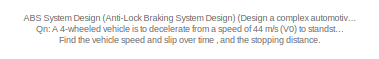
[diagram: root canvas - part 1/5, top left region]
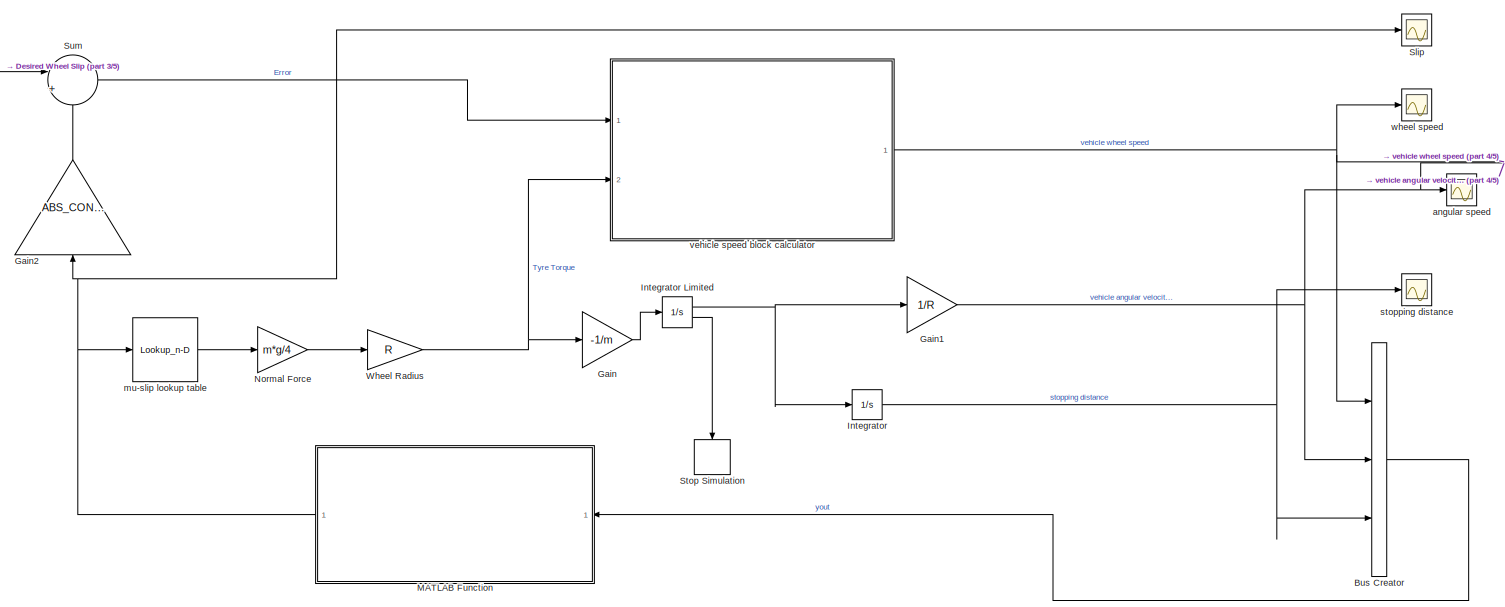
[diagram: root canvas - part 2/5, full width, top band]
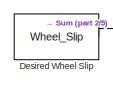
[diagram: root canvas - part 3/5, top left region]
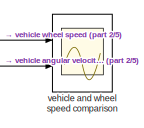
[diagram: root canvas - part 4/5, top right region]
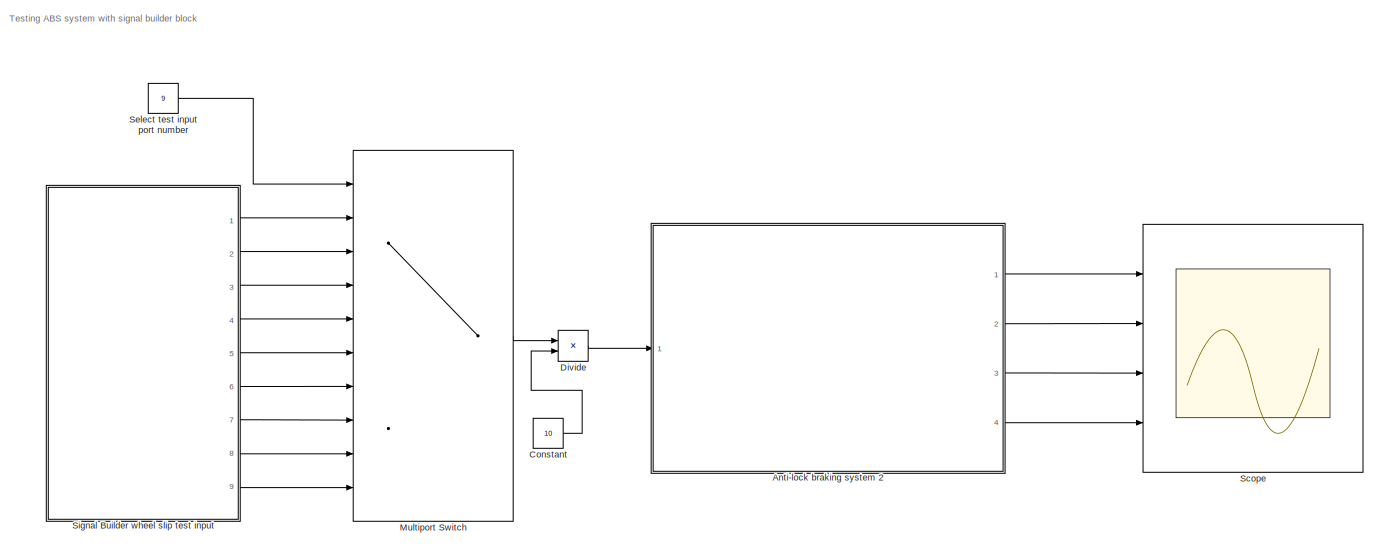
[diagram: root canvas - part 5/5, bottom center region]
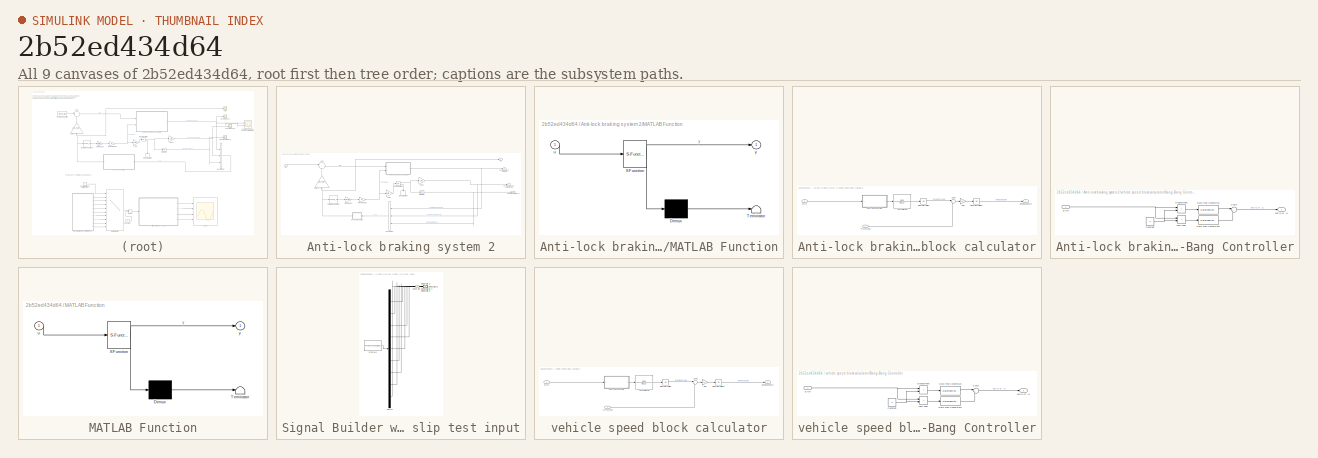
[diagram: thumbnail index - all 9 canvases of the model, root first then tree order]
MODEL slx_2b52ed434d64
KIND model
CONFIG AbsTol = auto
CONFIG EnableMultiTasking = off
CONFIG FixedStep = auto
CONFIG InitFcn = Wheel_Slip=0.2;\nm=75;\nR=1.25;\ng=9.81;\nI=5;\nv0=44;\nABS_CONTROL=1;
CONFIG MaxStep = auto
CONFIG MinStep = auto
CONFIG RelTol = 1e-3
CONFIG SampleTimeConstraint = Unconstrained
CONFIG SolverName = VariableStepAuto
CONFIG StartTime = 0.0
CONFIG StopTime = 25
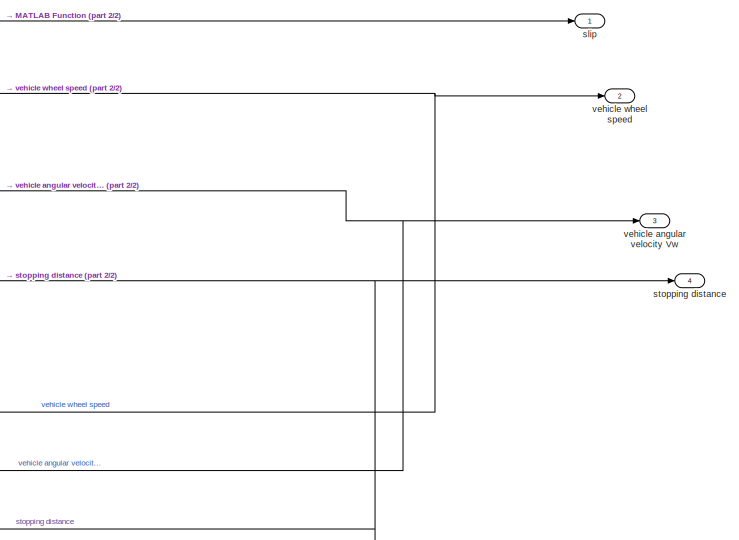
[diagram: Anti-lock braking system 2 - part 1/2, right side, full height]
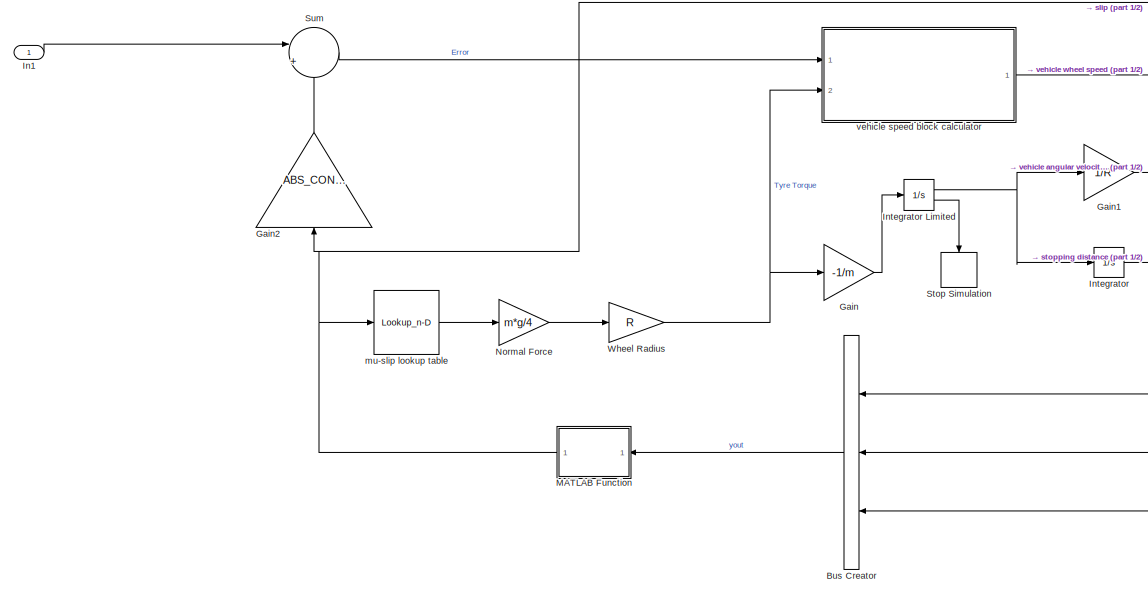
[diagram: Anti-lock braking system 2 - part 2/2, left side, full height]
BLOCK [SubSystem] Anti-lock braking system 2
  Ports = [1, 4]
  RequestExecContextInheritance = off
BLOCK [BusCreator] Anti-lock braking system 2/Bus Creator
  DisplayOption = bar
  InheritFromInputs = on
  Inputs = 3
  Ports = [3, 1]
BLOCK [Gain] Anti-lock braking system 2/Gain
  Gain = -1/m
BLOCK [Gain] Anti-lock braking system 2/Gain1
  Gain = 1/R
BLOCK [Gain] Anti-lock braking system 2/Gain2
  Gain = ABS_CONTROL
  NameLocation = right
BLOCK [Inport] Anti-lock braking system 2/In1
BLOCK [Integrator] Anti-lock braking system 2/Integrator
  Ports = [1, 1]
BLOCK [Integrator] Anti-lock braking system 2/Integrator Limited
  InitialCondition = v0
  LimitOutput = on
  LowerSaturationLimit = 0
  Ports = [1, 2]
  ShowSaturationPort = on
  UpperSaturationLimit = 1000
BLOCK [SubSystem] Anti-lock braking system 2/MATLAB Function
  ErrorFcn = Stateflow.Translate.translate
  NameLocation = top
  PermitHierarchicalResolution = ExplicitOnly
  Ports = [1, 1]
  RequestExecContextInheritance = off
  SFBlockType = MATLAB Function
  TreatAsAtomicUnit = on
BLOCK [Demux] Anti-lock braking system 2/MATLAB Function/ Demux 
  Outputs = 1
  Ports = [1, 1]
BLOCK [S-Function] Anti-lock braking system 2/MATLAB Function/ SFunction 
  EnableBusSupport = on
  FunctionName = sf_sfun
  PortCounts = [1 2]
  Ports = [1, 2]
  SFcnIsStateOwnerBlock = off
  SFunctionDeploymentMode = off
  Tag = Stateflow S-Function 1
BLOCK [Terminator] Anti-lock braking system 2/MATLAB Function/ Terminator 
BLOCK [Inport] Anti-lock braking system 2/MATLAB Function/u
BLOCK [Outport] Anti-lock braking system 2/MATLAB Function/y
BLOCK [Gain] Anti-lock braking system 2/Normal Force
  Gain = m*g/4
BLOCK [Stop] Anti-lock braking system 2/Stop Simulation
  NameLocation = left
BLOCK [Sum] Anti-lock braking system 2/Sum
  Inputs = |+-
  Ports = [2, 1]
BLOCK [Gain] Anti-lock braking system 2/Wheel Radius
  Gain = R
BLOCK [Lookup_n-D] Anti-lock braking system 2/mu-slip lookup table
  BreakpointsForDimension1 = [0\n0.05\n0.1\n0.15\n0.2\n0.25\n0.3\n0.35\n0.4\n0.45\n0.5\n0.55\n0.6\n0.65\n0.7\n0.75\n0.8\n0.85\n0.9\n0.95\n1\n]
  InputPortMap = u0
  InternalRulePriority = Speed
  NumberOfTableDimensions = 1
  Ports = [1, 1]
  RndMeth = Simplest
  Table = [0\n0.4\n0.8\n0.97\n1\n0.98\n0.96\n0.94\n0.92\n0.9\n0.88\n0.855\n0.83\n0.81\n0.79\n0.77\n0.75\n0.73\n0.72\n0.71\n0.7\n]
BLOCK [Outport] Anti-lock braking system 2/slip
BLOCK [Outport] Anti-lock braking system 2/stopping distance
  Port = 4
BLOCK [Outport] Anti-lock braking system 2/vehicle angular velocity Vw
  Port = 3
BLOCK [SubSystem] Anti-lock braking system 2/vehicle speed block calculator
  Ports = [2, 1]
  RequestExecContextInheritance = off
BLOCK [SubSystem] Anti-lock braking system 2/vehicle speed block calculator/Bang-Bang Controller
  Ports = [1, 1]
  RequestExecContextInheritance = off
BLOCK [Constant] Anti-lock braking system 2/vehicle speed block calculator/Bang-Bang Controller/Constant
  Value = 0
BLOCK [DataTypeConversion] Anti-lock braking system 2/vehicle speed block calculator/Bang-Bang Controller/Data Type Conversion
  OutDataTypeStr = double
  SaturateOnIntegerOverflow = off
BLOCK [DataTypeConversion] Anti-lock braking system 2/vehicle speed block calculator/Bang-Bang Controller/Data Type Conversion1
  OutDataTypeStr = double
  SaturateOnIntegerOverflow = off
BLOCK [Inport] Anti-lock braking system 2/vehicle speed block calculator/Bang-Bang Controller/Error
BLOCK [RelationalOperator] Anti-lock braking system 2/vehicle speed block calculator/Bang-Bang Controller/GreaterThan
  InputSameDT = off
  Operator = >
  OutDataTypeStr = boolean
  Ports = [2, 1]
  RndMeth = Simplest
BLOCK [RelationalOperator] Anti-lock braking system 2/vehicle speed block calculator/Bang-Bang Controller/Less Than
  InputSameDT = off
  Operator = <
  OutDataTypeStr = boolean
  Ports = [2, 1]
  RndMeth = Simplest
BLOCK [Sum] Anti-lock braking system 2/vehicle speed block calculator/Bang-Bang Controller/Sum1
  Inputs = |+-
  Ports = [2, 1]
BLOCK [Outport] Anti-lock braking system 2/vehicle speed block calculator/Bang-Bang Controller/out(+1 or -1)
BLOCK [Inport] Anti-lock braking system 2/vehicle speed block calculator/Error
BLOCK [Gain] Anti-lock braking system 2/vehicle speed block calculator/Gain
  Gain = 1/I
BLOCK [TransferFcn] Anti-lock braking system 2/vehicle speed block calculator/Hydraulic Lag
  Denominator = [0.01 1]
  Numerator = [100]
BLOCK [Integrator] Anti-lock braking system 2/vehicle speed block calculator/Integrator Limited
  LimitOutput = on
  LowerSaturationLimit = 0
  Ports = [1, 1]
  UpperSaturationLimit = 1000
BLOCK [Integrator] Anti-lock braking system 2/vehicle speed block calculator/Integrator Limited1
  InitialCondition = v0/R
  LimitOutput = on
  LowerSaturationLimit = 0
  Ports = [1, 1]
  UpperSaturationLimit = 1000
BLOCK [Sum] Anti-lock braking system 2/vehicle speed block calculator/Sum1
  Inputs = |-+
  Ports = [2, 1]
BLOCK [Inport] Anti-lock braking system 2/vehicle speed block calculator/Tyre Torque
  Port = 2
BLOCK [Outport] Anti-lock braking system 2/vehicle speed block calculator/wheel speed Wv
BLOCK [Outport] Anti-lock braking system 2/vehicle wheel speed
  Port = 2
BLOCK [BusCreator] Bus Creator
  DisplayOption = bar
  InheritFromInputs = on
  Inputs = 3
  Ports = [3, 1]
BLOCK [Constant] Constant
  Value = 10
BLOCK [Constant] Desired Wheel Slip
  Value = Wheel_Slip
BLOCK [Product] Divide
  Inputs = */
  Ports = [2, 1]
BLOCK [Gain] Gain
  Gain = -1/m
BLOCK [Gain] Gain1
  Gain = 1/R
BLOCK [Gain] Gain2
  Gain = ABS_CONTROL
  NameLocation = right
BLOCK [Integrator] Integrator
  Ports = [1, 1]
BLOCK [Integrator] Integrator Limited
  InitialCondition = v0
  LimitOutput = on
  LowerSaturationLimit = 0
  Ports = [1, 2]
  ShowSaturationPort = on
  UpperSaturationLimit = 1000
BLOCK [SubSystem] MATLAB Function
  ErrorFcn = Stateflow.Translate.translate
  NameLocation = top
  PermitHierarchicalResolution = ExplicitOnly
  Ports = [1, 1]
  RequestExecContextInheritance = off
  SFBlockType = MATLAB Function
  TreatAsAtomicUnit = on
BLOCK [Demux] MATLAB Function/ Demux 
  Outputs = 1
  Ports = [1, 1]
BLOCK [S-Function] MATLAB Function/ SFunction 
  EnableBusSupport = on
  FunctionName = sf_sfun
  PortCounts = [1 2]
  Ports = [1, 2]
  SFcnIsStateOwnerBlock = off
  SFunctionDeploymentMode = off
  Tag = Stateflow S-Function 2
BLOCK [Terminator] MATLAB Function/ Terminator 
BLOCK [Inport] MATLAB Function/u
BLOCK [Outport] MATLAB Function/y
BLOCK [MultiPortSwitch] Multiport Switch
  DataPortIndices = {2,3,4,5,6,7,8,9,10}
  DiagnosticForDefault = None
  InputSameDT = off
  Inputs = 9
  OutDataTypeStr = int8
  Ports = [10, 1]
  SaturateOnIntegerOverflow = off
BLOCK [Gain] Normal Force
  Gain = m*g/4
BLOCK [Scope] Scope
  Floating = off
  NumInputPorts = 4
  Ports = [4]
  ScopeSpecificationString = Simulink.scopes.TimeScopeBlockCfg('CurrentConfiguration', extmgr.ConfigurationSet(extmgr.Configuration('Core','General UI',true,'FigureColor',[1 1 1]),extmgr.Configuration('Core','Source UI',true),extmgr.Configuration('Sources','WiredSimulink',true,'DataLoggingVariableName','ScopeData1'),extmgr.Configuration('Visuals','Time Domain',true,'SerializedDisplays',{struct('MinYLimReal','-0.125','MaxYLimR...<+4078ch>
BLOCK [Constant] Select test input port number
  Value = 9
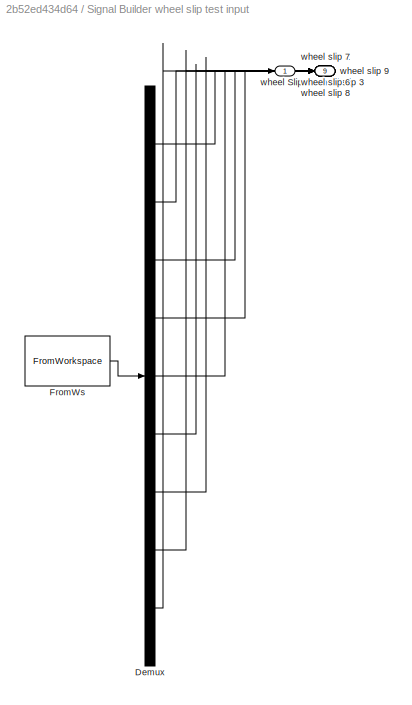
BLOCK [SubSystem] Signal Builder wheel slip test input
  ClipboardFcn = sigbuilder_block('clipboard');
  CloseFcn = sigbuilder_block('close');
  ContinueFcn = sigbuilder_block('continue');
  CopyFcn = sigbuilder_block('copy');
  DeleteFcn = sigbuilder_block('delete');
  LoadFcn = sigbuilder_block('load');
  MaskHideContents = on
  ModelCloseFcn = sigbuilder_block('modelClose');
  NameChangeFcn = sigbuilder_block('namechange');
  OpenFcn = sigbuilder_block('open',[5.4 58.2 1141.2 483.6 ]);
  PauseFcn = sigbuilder_block('pause');
  Ports = [0, 9]
  PreSaveFcn = sigbuilder_block('preSave');
  RequestExecContextInheritance = off
  StartFcn = sigbuilder_block('start');
  StopFcn = sigbuilder_block('stop');
  Tag = STV Subsys
BLOCK [Demux] Signal Builder wheel slip test input/Demux
  DisplayOption = none
  Outputs = 9
  Ports = [1, 9]
  Tag = STV Demux
BLOCK [FromWorkspace] Signal Builder wheel slip test input/FromWs
  Tag = STV FromWs
  VariableName = tuvar
BLOCK [Outport] Signal Builder wheel slip test input/wheel Slip 1
  Tag = STV Outport
BLOCK [Outport] Signal Builder wheel slip test input/wheel slip 2
  Port = 2
  Tag = STV Outport
BLOCK [Outport] Signal Builder wheel slip test input/wheel slip 3
  Port = 3
  Tag = STV Outport
BLOCK [Outport] Signal Builder wheel slip test input/wheel slip 4
  Port = 4
  Tag = STV Outport
BLOCK [Outport] Signal Builder wheel slip test input/wheel slip 5
  Port = 5
  Tag = STV Outport
BLOCK [Outport] Signal Builder wheel slip test input/wheel slip 6
  Port = 6
  Tag = STV Outport
BLOCK [Outport] Signal Builder wheel slip test input/wheel slip 7
  Port = 7
  Tag = STV Outport
BLOCK [Outport] Signal Builder wheel slip test input/wheel slip 8
  Port = 8
  Tag = STV Outport
BLOCK [Outport] Signal Builder wheel slip test input/wheel slip 9
  Port = 9
  Tag = STV Outport
BLOCK [Scope] Slip
  Floating = off
  NumInputPorts = 1
  Ports = [1]
  ScopeSpecificationString = Simulink.scopes.TimeScopeBlockCfg('CurrentConfiguration', extmgr.ConfigurationSet(extmgr.Configuration('Core','General UI',true,'FigureColor',[1 1 1]),extmgr.Configuration('Core','Source UI',true),extmgr.Configuration('Sources','WiredSimulink',true,'DataLoggingVariableName','ScopeData1'),extmgr.Configuration('Visuals','Time Domain',true,'SerializedDisplays',{struct('MinYLimReal','-0.125','MaxYLimR...<+1529ch>
BLOCK [Stop] Stop Simulation
  NameLocation = left
BLOCK [Sum] Sum
  Inputs = |+-
  Ports = [2, 1]
BLOCK [Gain] Wheel Radius
  Gain = R
BLOCK [Scope] angular speed
  Floating = off
  NumInputPorts = 1
  Ports = [1]
  ScopeSpecificationString = Simulink.scopes.TimeScopeBlockCfg('CurrentConfiguration', extmgr.ConfigurationSet(extmgr.Configuration('Core','General UI',true,'FigureColor',[1 1 1]),extmgr.Configuration('Core','Source UI',true),extmgr.Configuration('Sources','WiredSimulink',true,'DataLoggingVariableName','ScopeData2'),extmgr.Configuration('Visuals','Time Domain',true,'SerializedDisplays',{struct('MinYLimReal','-4.4','MaxYLimRea...<+1612ch>
BLOCK [Lookup_n-D] mu-slip lookup table
  BreakpointsForDimension1 = [0\n0.05\n0.1\n0.15\n0.2\n0.25\n0.3\n0.35\n0.4\n0.45\n0.5\n0.55\n0.6\n0.65\n0.7\n0.75\n0.8\n0.85\n0.9\n0.95\n1\n]
  InputPortMap = u0
  InternalRulePriority = Speed
  NumberOfTableDimensions = 1
  Ports = [1, 1]
  RndMeth = Simplest
  Table = [0\n0.4\n0.8\n0.97\n1\n0.98\n0.96\n0.94\n0.92\n0.9\n0.88\n0.855\n0.83\n0.81\n0.79\n0.77\n0.75\n0.73\n0.72\n0.71\n0.7\n]
BLOCK [Scope] stopping distance
  Floating = off
  NumInputPorts = 1
  Ports = [1]
  ScopeSpecificationString = Simulink.scopes.TimeScopeBlockCfg('CurrentConfiguration', extmgr.ConfigurationSet(extmgr.Configuration('Core','General UI',true,'FigureColor',[1 1 1]),extmgr.Configuration('Core','Source UI',true),extmgr.Configuration('Sources','WiredSimulink',true,'DataLoggingVariableName','ScopeData3','DataLoggingSaveFormat','Array','DataLoggingLimitDataPoints',true,'DataLoggingDecimation','1'),extmgr.Configurat...<+1851ch>
BLOCK [Scope] vehicle and wheel speed comparison
  Floating = off
  NumInputPorts = 2
  Ports = [2]
  ScopeSpecificationString = Simulink.scopes.TimeScopeBlockCfg('CurrentConfiguration', extmgr.ConfigurationSet(extmgr.Configuration('Core','General UI',true,'FigureColor',[1 1 1]),extmgr.Configuration('Core','Source UI',true),extmgr.Configuration('Sources','WiredSimulink',true,'DataLoggingVariableName','ScopeData1'),extmgr.Configuration('Visuals','Time Domain',true,'SerializedDisplays',{struct('MinYLimReal','-4.4','MaxYLimRea...<+1630ch>
BLOCK [SubSystem] vehicle speed block calculator
  Ports = [2, 1]
  RequestExecContextInheritance = off
BLOCK [SubSystem] vehicle speed block calculator/Bang-Bang Controller
  Ports = [1, 1]
  RequestExecContextInheritance = off
BLOCK [Constant] vehicle speed block calculator/Bang-Bang Controller/Constant
  Value = 0
BLOCK [DataTypeConversion] vehicle speed block calculator/Bang-Bang Controller/Data Type Conversion
  OutDataTypeStr = double
  SaturateOnIntegerOverflow = off
BLOCK [DataTypeConversion] vehicle speed block calculator/Bang-Bang Controller/Data Type Conversion1
  OutDataTypeStr = double
  SaturateOnIntegerOverflow = off
BLOCK [Inport] vehicle speed block calculator/Bang-Bang Controller/Error
BLOCK [RelationalOperator] vehicle speed block calculator/Bang-Bang Controller/GreaterThan
  InputSameDT = off
  Operator = >
  OutDataTypeStr = boolean
  Ports = [2, 1]
  RndMeth = Simplest
BLOCK [RelationalOperator] vehicle speed block calculator/Bang-Bang Controller/Less Than
  InputSameDT = off
  Operator = <
  OutDataTypeStr = boolean
  Ports = [2, 1]
  RndMeth = Simplest
BLOCK [Sum] vehicle speed block calculator/Bang-Bang Controller/Sum1
  Inputs = |+-
  Ports = [2, 1]
BLOCK [Outport] vehicle speed block calculator/Bang-Bang Controller/out(+1 or -1)
BLOCK [Inport] vehicle speed block calculator/Error
BLOCK [Gain] vehicle speed block calculator/Gain
  Gain = 1/I
BLOCK [TransferFcn] vehicle speed block calculator/Hydraulic Lag
  Denominator = [0.01 1]
  Numerator = [100]
BLOCK [Integrator] vehicle speed block calculator/Integrator Limited
  LimitOutput = on
  LowerSaturationLimit = 0
  Ports = [1, 1]
  UpperSaturationLimit = 1000
BLOCK [Integrator] vehicle speed block calculator/Integrator Limited1
  InitialCondition = v0/R
  LimitOutput = on
  LowerSaturationLimit = 0
  Ports = [1, 1]
  UpperSaturationLimit = 1000
BLOCK [Sum] vehicle speed block calculator/Sum1
  Inputs = |-+
  Ports = [2, 1]
BLOCK [Inport] vehicle speed block calculator/Tyre Torque
  Port = 2
BLOCK [Outport] vehicle speed block calculator/wheel speed Wv
BLOCK [Scope] wheel speed
  Floating = off
  NumInputPorts = 1
  Ports = [1]
  ScopeSpecificationString = Simulink.scopes.TimeScopeBlockCfg('CurrentConfiguration', extmgr.ConfigurationSet(extmgr.Configuration('Core','General UI',true,'FigureColor',[1 1 1]),extmgr.Configuration('Core','Source UI',true),extmgr.Configuration('Sources','WiredSimulink',true),extmgr.Configuration('Visuals','Time Domain',true,'SerializedDisplays',{struct('MinYLimReal','-4.4','MaxYLimReal','39.6','YLabelReal','vehicle speed',...<+1494ch>
ANNOTATION (root): ABS System Design (Anti-Lock Braking System Design) (Design a complex automotive system) Qn: A 4-wheeled vehicle is to decelerate from a speed of 44 m/s (V0) to standstill without wheel locking. The co-efficient friction between the tyres and road is known. The desired wheel slip is 0.2. Find the vehicle speed and slip over time , and the stopping distance.
ANNOTATION (root): Testing ABS system with signal builder block
LINE Anti-lock braking system 2/Bus Creator:1 -> Anti-lock braking system 2/MATLAB Function:1
NET Anti-lock braking system 2/Gain1:1 -> Anti-lock braking system 2/Bus Creator:2, Anti-lock braking system 2/vehicle angular velocity Vw:1
LINE Anti-lock braking system 2/Gain2:1 -> Anti-lock braking system 2/Sum:2
LINE Anti-lock braking system 2/Gain:1 -> Anti-lock braking system 2/Integrator Limited:1
LINE Anti-lock braking system 2/In1:1 -> Anti-lock braking system 2/Sum:1
NET Anti-lock braking system 2/Integrator Limited:1 -> Anti-lock braking system 2/Gain1:1, Anti-lock braking system 2/Integrator:1
LINE Anti-lock braking system 2/Integrator Limited:2 -> Anti-lock braking system 2/Stop Simulation:1
NET Anti-lock braking system 2/Integrator:1 -> Anti-lock braking system 2/Bus Creator:3, Anti-lock braking system 2/stopping distance:1
NET Anti-lock braking system 2/MATLAB Function:1 -> Anti-lock braking system 2/Gain2:1, Anti-lock braking system 2/mu-slip lookup table:1, Anti-lock braking system 2/slip:1
LINE Anti-lock braking system 2/Normal Force:1 -> Anti-lock braking system 2/Wheel Radius:1
LINE Anti-lock braking system 2/Sum:1 -> Anti-lock braking system 2/vehicle speed block calculator:1
NET Anti-lock braking system 2/Wheel Radius:1 -> Anti-lock braking system 2/Gain:1, Anti-lock braking system 2/vehicle speed block calculator:2
LINE Anti-lock braking system 2/mu-slip lookup table:1 -> Anti-lock braking system 2/Normal Force:1
NET Anti-lock braking system 2/vehicle speed block calculator/Bang-Bang Controller/Constant:1 -> Anti-lock braking system 2/vehicle speed block calculator/Bang-Bang Controller/GreaterThan:2, Anti-lock braking system 2/vehicle speed block calculator/Bang-Bang Controller/Less Than:2
LINE Anti-lock braking system 2/vehicle speed block calculator/Bang-Bang Controller/Data Type Conversion1:1 -> Anti-lock braking system 2/vehicle speed block calculator/Bang-Bang Controller/Sum1:2
LINE Anti-lock braking system 2/vehicle speed block calculator/Bang-Bang Controller/Data Type Conversion:1 -> Anti-lock braking system 2/vehicle speed block calculator/Bang-Bang Controller/Sum1:1
NET Anti-lock braking system 2/vehicle speed block calculator/Bang-Bang Controller/Error:1 -> Anti-lock braking system 2/vehicle speed block calculator/Bang-Bang Controller/GreaterThan:1, Anti-lock braking system 2/vehicle speed block calculator/Bang-Bang Controller/Less Than:1
LINE Anti-lock braking system 2/vehicle speed block calculator/Bang-Bang Controller/GreaterThan:1 -> Anti-lock braking system 2/vehicle speed block calculator/Bang-Bang Controller/Data Type Conversion:1
LINE Anti-lock braking system 2/vehicle speed block calculator/Bang-Bang Controller/Less Than:1 -> Anti-lock braking system 2/vehicle speed block calculator/Bang-Bang Controller/Data Type Conversion1:1
LINE Anti-lock braking system 2/vehicle speed block calculator/Bang-Bang Controller/Sum1:1 -> Anti-lock braking system 2/vehicle speed block calculator/Bang-Bang Controller/out(+1 or -1):1
LINE Anti-lock braking system 2/vehicle speed block calculator/Bang-Bang Controller:1 -> Anti-lock braking system 2/vehicle speed block calculator/Hydraulic Lag:1
LINE Anti-lock braking system 2/vehicle speed block calculator/Error:1 -> Anti-lock braking system 2/vehicle speed block calculator/Bang-Bang Controller:1
LINE Anti-lock braking system 2/vehicle speed block calculator/Gain:1 -> Anti-lock braking system 2/vehicle speed block calculator/Integrator Limited1:1
LINE Anti-lock braking system 2/vehicle speed block calculator/Hydraulic Lag:1 -> Anti-lock braking system 2/vehicle speed block calculator/Integrator Limited:1
LINE Anti-lock braking system 2/vehicle speed block calculator/Integrator Limited1:1 -> Anti-lock braking system 2/vehicle speed block calculator/wheel speed Wv:1
LINE Anti-lock braking system 2/vehicle speed block calculator/Integrator Limited:1 -> Anti-lock braking system 2/vehicle speed block calculator/Sum1:1
LINE Anti-lock braking system 2/vehicle speed block calculator/Sum1:1 -> Anti-lock braking system 2/vehicle speed block calculator/Gain:1
LINE Anti-lock braking system 2/vehicle speed block calculator/Tyre Torque:1 -> Anti-lock braking system 2/vehicle speed block calculator/Sum1:2
NET Anti-lock braking system 2/vehicle speed block calculator:1 -> Anti-lock braking system 2/Bus Creator:1, Anti-lock braking system 2/vehicle wheel speed:1
LINE Anti-lock braking system 2:1 -> Scope:1
LINE Anti-lock braking system 2:2 -> Scope:2
LINE Anti-lock braking system 2:3 -> Scope:3
LINE Anti-lock braking system 2:4 -> Scope:4
LINE Bus Creator:1 -> MATLAB Function:1
LINE Constant:1 -> Divide:2
LINE Desired Wheel Slip:1 -> Sum:1
LINE Divide:1 -> Anti-lock braking system 2:1
NET Gain1:1 -> Bus Creator:2, angular speed:1, vehicle and wheel speed comparison:2
LINE Gain2:1 -> Sum:2
LINE Gain:1 -> Integrator Limited:1
NET Integrator Limited:1 -> Gain1:1, Integrator:1
LINE Integrator Limited:2 -> Stop Simulation:1
NET Integrator:1 -> Bus Creator:3, stopping distance:1
NET MATLAB Function:1 -> Gain2:1, Slip:1, mu-slip lookup table:1
LINE Multiport Switch:1 -> Divide:1
LINE Normal Force:1 -> Wheel Radius:1
LINE Select test input port number:1 -> Multiport Switch:1
LINE Signal Builder wheel slip test input:1 -> Multiport Switch:2
LINE Signal Builder wheel slip test input:2 -> Multiport Switch:3
LINE Signal Builder wheel slip test input:3 -> Multiport Switch:4
LINE Signal Builder wheel slip test input:4 -> Multiport Switch:5
LINE Signal Builder wheel slip test input:5 -> Multiport Switch:6
LINE Signal Builder wheel slip test input:6 -> Multiport Switch:7
LINE Signal Builder wheel slip test input:7 -> Multiport Switch:8
LINE Signal Builder wheel slip test input:8 -> Multiport Switch:9
LINE Signal Builder wheel slip test input:9 -> Multiport Switch:10
LINE Sum:1 -> vehicle speed block calculator:1
NET Wheel Radius:1 -> Gain:1, vehicle speed block calculator:2
LINE mu-slip lookup table:1 -> Normal Force:1
NET vehicle speed block calculator/Bang-Bang Controller/Constant:1 -> vehicle speed block calculator/Bang-Bang Controller/GreaterThan:2, vehicle speed block calculator/Bang-Bang Controller/Less Than:2
LINE vehicle speed block calculator/Bang-Bang Controller/Data Type Conversion1:1 -> vehicle speed block calculator/Bang-Bang Controller/Sum1:2
LINE vehicle speed block calculator/Bang-Bang Controller/Data Type Conversion:1 -> vehicle speed block calculator/Bang-Bang Controller/Sum1:1
NET vehicle speed block calculator/Bang-Bang Controller/Error:1 -> vehicle speed block calculator/Bang-Bang Controller/GreaterThan:1, vehicle speed block calculator/Bang-Bang Controller/Less Than:1
LINE vehicle speed block calculator/Bang-Bang Controller/GreaterThan:1 -> vehicle speed block calculator/Bang-Bang Controller/Data Type Conversion:1
LINE vehicle speed block calculator/Bang-Bang Controller/Less Than:1 -> vehicle speed block calculator/Bang-Bang Controller/Data Type Conversion1:1
LINE vehicle speed block calculator/Bang-Bang Controller/Sum1:1 -> vehicle speed block calculator/Bang-Bang Controller/out(+1 or -1):1
LINE vehicle speed block calculator/Bang-Bang Controller:1 -> vehicle speed block calculator/Hydraulic Lag:1
LINE vehicle speed block calculator/Error:1 -> vehicle speed block calculator/Bang-Bang Controller:1
LINE vehicle speed block calculator/Gain:1 -> vehicle speed block calculator/Integrator Limited1:1
LINE vehicle speed block calculator/Hydraulic Lag:1 -> vehicle speed block calculator/Integrator Limited:1
LINE vehicle speed block calculator/Integrator Limited1:1 -> vehicle speed block calculator/wheel speed Wv:1
LINE vehicle speed block calculator/Integrator Limited:1 -> vehicle speed block calculator/Sum1:1
LINE vehicle speed block calculator/Sum1:1 -> vehicle speed block calculator/Gain:1
LINE vehicle speed block calculator/Tyre Torque:1 -> vehicle speed block calculator/Sum1:2
NET vehicle speed block calculator:1 -> Bus Creator:1, vehicle and wheel speed comparison:1, wheel speed:1
note: NET lines group one-source signal fan-out (src -> all destinations, sorted); 1:1 wires keep LINE
CHART MATLAB Function states=1 transitions=1
  STATE_LABEL 'eML_blk_kernel()'
  STATE_LABEL 'SCRIPT:\nfunction y = RelativeSlip(u)\ny=1.0 - u(1)/(u(2) + (u(2)==0)*eps);\n\n\n'
CHART Anti-lock braking system 2/MATLAB Function states=1 transitions=1
  STATE_LABEL 'eML_blk_kernel()'
  STATE_LABEL 'SCRIPT:\nfunction y = RelativeSlip(u)\ny=1.0 - u(1)/(u(2) + (u(2)==0)*eps);\n\n\n'
CHART  states=0 transitions=0
CHART  states=0 transitions=0
